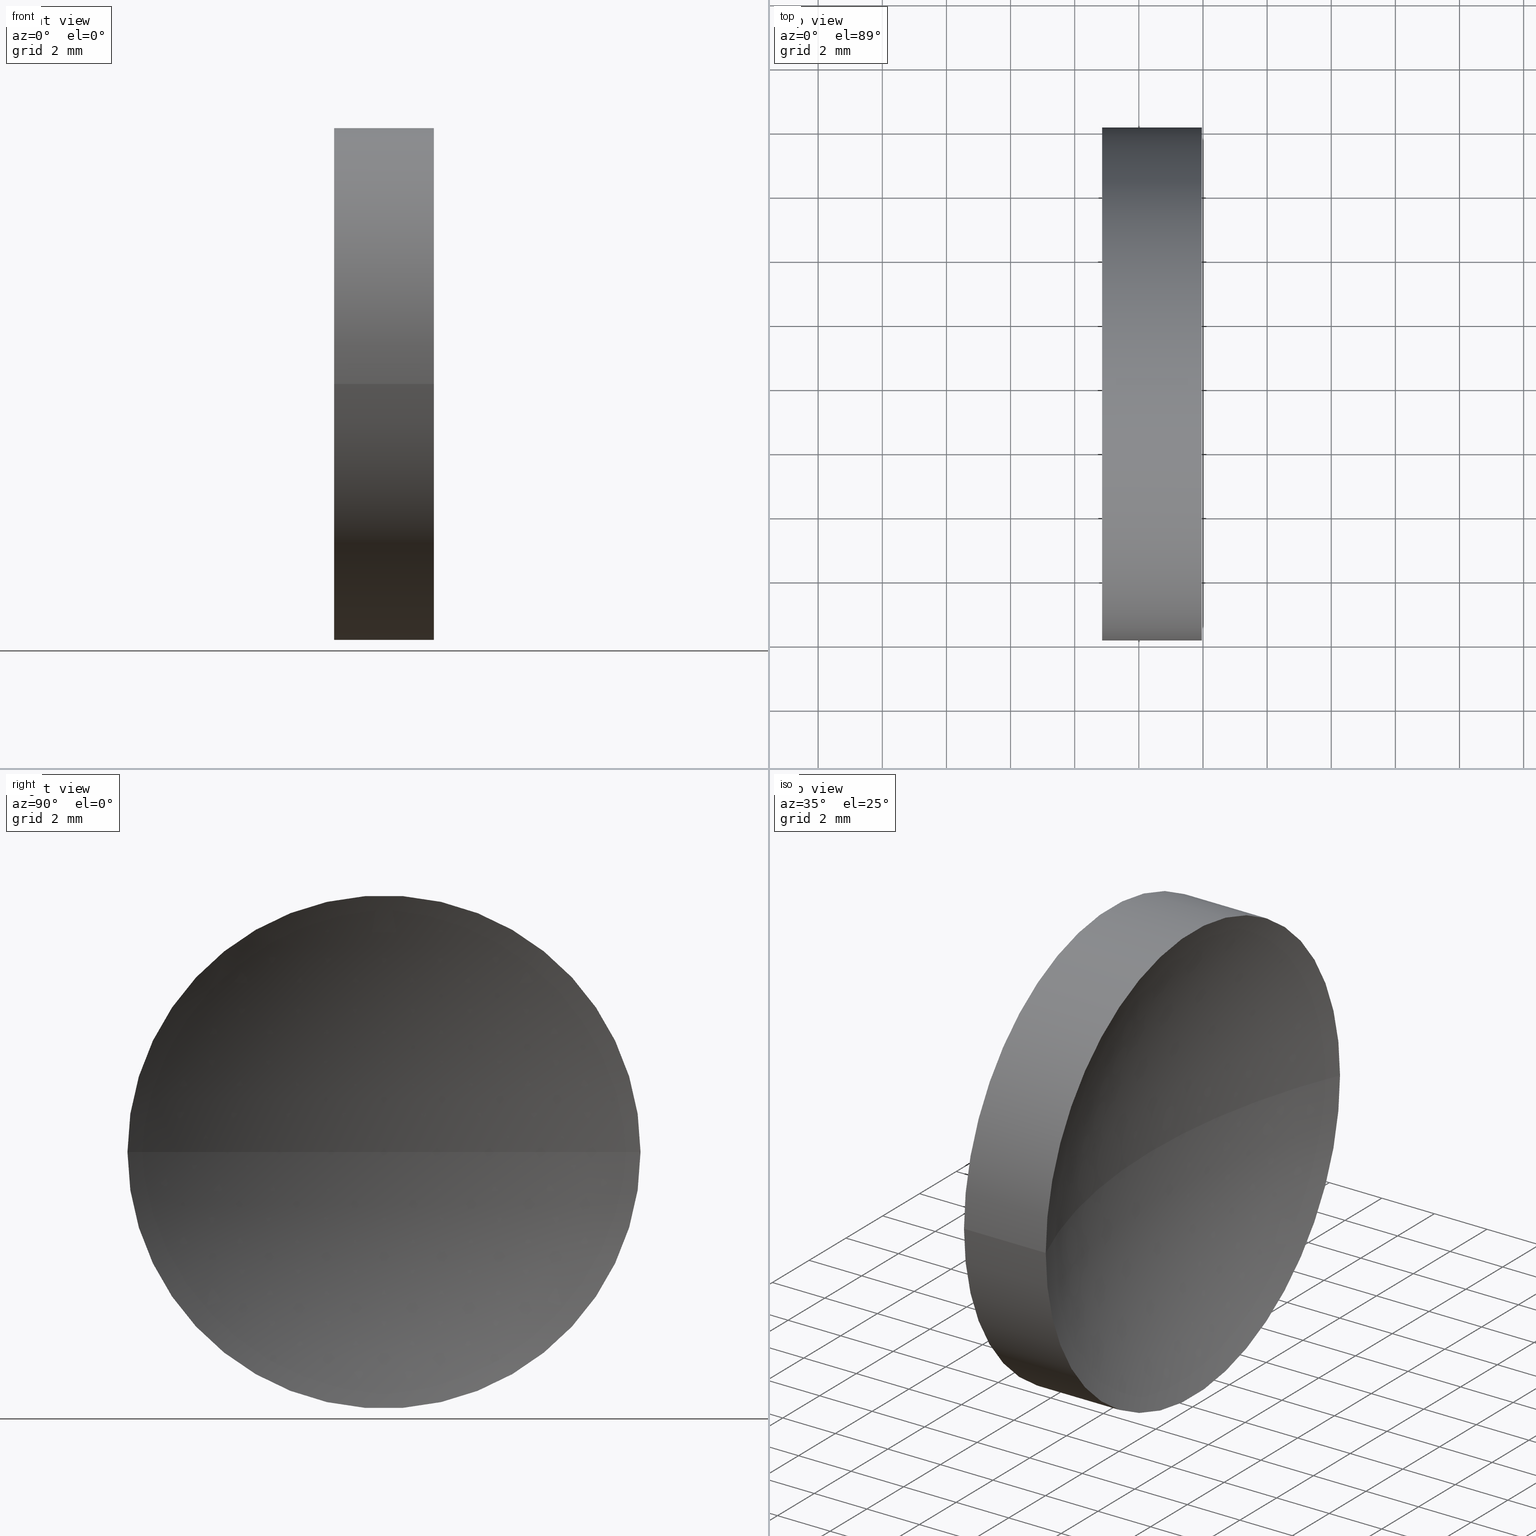
[diagram: canonical four-view strip — front | top / right | iso, engineering-drawing reading convention]
A machine part, canonical four-view strip (front | top / right | iso — engineering-drawing reading convention). The complete STEP part file that produces these views, byte-faithful:
ISO-10303-21;
HEADER;
FILE_DESCRIPTION (( 'STEP AP214' ),
    '1' );
FILE_NAME ('120142.STEP',
    '2019-06-20T01:20:42',
    ( '' ),
    ( '' ),
    'SwSTEP 2.0',
    'SolidWorks 2016',
    '' );
FILE_SCHEMA (( 'AUTOMOTIVE_DESIGN' ));
ENDSEC;

DATA;
#1 = DIRECTION ( 'NONE',  ( -1.000000000000000000, 4.058245434298766700E-016, -0.0000000000000000000 ) ) ;
#2 = CARTESIAN_POINT ( 'NONE',  ( 47.96702522006625500, 26.06225218280608000, 0.0000000000000000000 ) ) ;
#3 = CARTESIAN_POINT ( 'NONE',  ( 43.01195023616492100, 18.06225218280608400, 0.0000000000000000000 ) ) ;
#4 =( GEOMETRIC_REPRESENTATION_CONTEXT ( 3 ) GLOBAL_UNCERTAINTY_ASSIGNED_CONTEXT ( ( #128 ) ) GLOBAL_UNIT_ASSIGNED_CONTEXT ( ( #146, #12, #60 ) ) REPRESENTATION_CONTEXT ( 'NONE', 'WORKASPACE' ) );
#5 = DIRECTION ( 'NONE',  ( 0.0000000000000000000, -1.000000000000000000, 0.0000000000000000000 ) ) ;
#6 = VERTEX_POINT ( 'NONE', #142 ) ;
#7 = DIRECTION ( 'NONE',  ( 4.058245434298766700E-016, 1.000000000000000000, 0.0000000000000000000 ) ) ;
#8 = CARTESIAN_POINT ( 'NONE',  ( 44.85442262622448300, 34.06225218280608400, 9.797174393178827600E-016 ) ) ;
#9 =( LENGTH_UNIT ( ) NAMED_UNIT ( * ) SI_UNIT ( .MILLI., .METRE. ) );
#10 = DIRECTION ( 'NONE',  ( -6.720478357295135600E-016, -1.000000000000000000, 0.0000000000000000000 ) ) ;
#11 = APPLICATION_CONTEXT ( 'automotive_design' ) ;
#12 =( NAMED_UNIT ( * ) PLANE_ANGLE_UNIT ( ) SI_UNIT ( $, .RADIAN. ) );
#13 = EDGE_LOOP ( 'NONE', ( #137, #123, #157 ) ) ;
#14 = AXIS2_PLACEMENT_3D ( 'NONE', #47, #57, #134 ) ;
#15 = CLOSED_SHELL ( 'NONE', ( #147, #26, #145, #71, #124 ) ) ;
#16 = SURFACE_STYLE_FILL_AREA ( #42 ) ;
#17 =( LENGTH_UNIT ( ) NAMED_UNIT ( * ) SI_UNIT ( .MILLI., .METRE. ) );
#18 = EDGE_CURVE ( 'NONE', #20, #6, #110, .T. ) ;
#19 = DIRECTION ( 'NONE',  ( -1.000000000000000000, 4.058245434298766700E-016, -0.0000000000000000000 ) ) ;
#20 = VERTEX_POINT ( 'NONE', #8 ) ;
#21 =( NAMED_UNIT ( * ) SI_UNIT ( $, .STERADIAN. ) SOLID_ANGLE_UNIT ( ) );
#22 = DIRECTION ( 'NONE',  ( 0.0000000000000000000, 0.0000000000000000000, 1.000000000000000000 ) ) ;
#23 = PRODUCT ( '120142', '120142', '', ( #149 ) ) ;
#24 = FACE_OUTER_BOUND ( 'NONE', #38, .T. ) ;
#25 = STYLED_ITEM ( 'NONE', ( #151 ), #113 ) ;
#26 = ADVANCED_FACE ( 'NONE', ( #79 ), #95, .F. ) ;
#27 = ORIENTED_EDGE ( 'NONE', *, *, #18, .F. ) ;
#28 = PRESENTATION_LAYER_ASSIGNMENT (  '', '', ( #25 ) ) ;
#29 = ORIENTED_EDGE ( 'NONE', *, *, #50, .T. ) ;
#30 = CIRCLE ( 'NONE', #108, 20.65000000000000200 ) ;
#31 = CARTESIAN_POINT ( 'NONE',  ( 46.35442262622448300, 26.06225218280608800, 0.0000000000000000000 ) ) ;
#32 = PLANE ( 'NONE',  #75 ) ;
#33 = APPLICATION_PROTOCOL_DEFINITION ( 'draft international standard', 'automotive_design', 1998, #105 ) ;
#34 = ORIENTED_EDGE ( 'NONE', *, *, #121, .T. ) ;
#35 = SURFACE_SIDE_STYLE ('',( #37 ) ) ;
#36 =( GEOMETRIC_REPRESENTATION_CONTEXT ( 3 ) GLOBAL_UNCERTAINTY_ASSIGNED_CONTEXT ( ( #158 ) ) GLOBAL_UNIT_ASSIGNED_CONTEXT ( ( #9, #70, #140 ) ) REPRESENTATION_CONTEXT ( 'NONE', 'WORKASPACE' ) );
#37 = SURFACE_STYLE_FILL_AREA ( #119 ) ;
#38 = EDGE_LOOP ( 'NONE', ( #29, #34, #44, #135 ) ) ;
#39 = ADVANCED_BREP_SHAPE_REPRESENTATION ( '120142', ( #113, #65 ), #159 ) ;
#40 = DIRECTION ( 'NONE',  ( -1.000000000000000000, 0.0000000000000000000, 0.0000000000000000000 ) ) ;
#41 = FILL_AREA_STYLE_COLOUR ( '', #136 ) ;
#42 = FILL_AREA_STYLE ('',( #80 ) ) ;
#43 = LINE ( 'NONE', #143, #150 ) ;
#44 = ORIENTED_EDGE ( 'NONE', *, *, #133, .F. ) ;
#45 = DIRECTION ( 'NONE',  ( 0.0000000000000000000, -1.000000000000000000, 0.0000000000000000000 ) ) ;
#46 = SURFACE_STYLE_USAGE ( .BOTH. , #92 ) ;
#47 = CARTESIAN_POINT ( 'NONE',  ( 47.96702522006625500, 26.06225218280608000, 0.0000000000000000000 ) ) ;
#48 = EDGE_LOOP ( 'NONE', ( #53, #77, #85 ) ) ;
#49 = CIRCLE ( 'NONE', #14, 8.000000000000003600 ) ;
#50 = EDGE_CURVE ( 'NONE', #164, #90, #49, .T. ) ;
#51 = DIRECTION ( 'NONE',  ( -1.000000000000000000, 4.058245434298766700E-016, -0.0000000000000000000 ) ) ;
#52 = DIRECTION ( 'NONE',  ( -6.720478357295135600E-016, -1.000000000000000000, 0.0000000000000000000 ) ) ;
#53 = ORIENTED_EDGE ( 'NONE', *, *, #64, .F. ) ;
#54 = DIRECTION ( 'NONE',  ( -1.000000000000000000, 4.058245434298766700E-016, -0.0000000000000000000 ) ) ;
#55 = CARTESIAN_POINT ( 'NONE',  ( 67.00442262622448200, 26.06225218280608000, 0.0000000000000000000 ) ) ;
#56 = DIRECTION ( 'NONE',  ( 0.0000000000000000000, -1.000000000000000000, 0.0000000000000000000 ) ) ;
#57 = DIRECTION ( 'NONE',  ( -1.000000000000000000, 4.058245434298766700E-016, -0.0000000000000000000 ) ) ;
#58 = ORIENTED_EDGE ( 'NONE', *, *, #121, .F. ) ;
#59 = SURFACE_STYLE_USAGE ( .BOTH. , #35 ) ;
#60 =( NAMED_UNIT ( * ) SI_UNIT ( $, .STERADIAN. ) SOLID_ANGLE_UNIT ( ) );
#61 = PRESENTATION_STYLE_ASSIGNMENT (( #59 ) ) ;
#62 = CIRCLE ( 'NONE', #162, 8.000000000000003600 ) ;
#63 = EDGE_CURVE ( 'NONE', #90, #164, #62, .T. ) ;
#64 = EDGE_CURVE ( 'NONE', #90, #144, #30, .T. ) ;
#65 = AXIS2_PLACEMENT_3D ( 'NONE', #132, #83, #122 ) ;
#66 = CARTESIAN_POINT ( 'NONE',  ( 67.00442262622448200, 26.06225218280608000, 0.0000000000000000000 ) ) ;
#67 = AXIS2_PLACEMENT_3D ( 'NONE', #81, #54, #69 ) ;
#68 = CARTESIAN_POINT ( 'NONE',  ( 47.96702522006625500, 34.06225218280608400, 9.797174393178819700E-016 ) ) ;
#69 = DIRECTION ( 'NONE',  ( 0.0000000000000000000, -1.000000000000000000, 0.0000000000000000000 ) ) ;
#70 =( NAMED_UNIT ( * ) PLANE_ANGLE_UNIT ( ) SI_UNIT ( $, .RADIAN. ) );
#71 = ADVANCED_FACE ( 'NONE', ( #115 ), #100, .T. ) ;
#72 = FACE_OUTER_BOUND ( 'NONE', #48, .T. ) ;
#73 = AXIS2_PLACEMENT_3D ( 'NONE', #156, #97, #5 ) ;
#74 = ORIENTED_EDGE ( 'NONE', *, *, #133, .T. ) ;
#75 = AXIS2_PLACEMENT_3D ( 'NONE', #138, #155, #7 ) ;
#76 = ORIENTED_EDGE ( 'NONE', *, *, #166, .T. ) ;
#77 = ORIENTED_EDGE ( 'NONE', *, *, #50, .F. ) ;
#78 = DIRECTION ( 'NONE',  ( 0.0000000000000000000, 0.0000000000000000000, 1.000000000000000000 ) ) ;
#79 = FACE_OUTER_BOUND ( 'NONE', #13, .T. ) ;
#80 = FILL_AREA_STYLE_COLOUR ( '', #127 ) ;
#81 = CARTESIAN_POINT ( 'NONE',  ( 44.85442262622448300, 26.06225218280608400, 0.0000000000000000000 ) ) ;
#82 = AXIS2_PLACEMENT_3D ( 'NONE', #101, #78, #52 ) ;
#83 = DIRECTION ( 'NONE',  ( 0.0000000000000000000, 0.0000000000000000000, 1.000000000000000000 ) ) ;
#84 = UNCERTAINTY_MEASURE_WITH_UNIT (LENGTH_MEASURE( 1.000000000000000100E-005 ), #17, 'distance_accuracy_value', 'NONE');
#85 = ORIENTED_EDGE ( 'NONE', *, *, #102, .T. ) ;
#86 = PRODUCT_DEFINITION_SHAPE ( 'NONE', 'NONE',  #98 ) ;
#87 = STYLED_ITEM ( 'NONE', ( #61 ), #39 ) ;
#88 = CIRCLE ( 'NONE', #67, 8.000000000000000000 ) ;
#89 = CARTESIAN_POINT ( 'NONE',  ( 43.01195023616492100, 26.06225218280608400, 0.0000000000000000000 ) ) ;
#90 = VERTEX_POINT ( 'NONE', #68 ) ;
#91 = MECHANICAL_DESIGN_GEOMETRIC_PRESENTATION_REPRESENTATION (  '', ( #25 ), #36 ) ;
#92 = SURFACE_SIDE_STYLE ('',( #16 ) ) ;
#93 = DIRECTION ( 'NONE',  ( 0.0000000000000000000, -1.000000000000000000, 0.0000000000000000000 ) ) ;
#94 = CARTESIAN_POINT ( 'NONE',  ( 67.00442262622448200, 26.06225218280608000, 0.0000000000000000000 ) ) ;
#95 = SPHERICAL_SURFACE ( 'NONE', #141, 20.65000000000000200 ) ;
#96 = DIRECTION ( 'NONE',  ( -1.000000000000000000, 4.058245434298766700E-016, -0.0000000000000000000 ) ) ;
#97 = DIRECTION ( 'NONE',  ( -1.000000000000000000, 4.058245434298766700E-016, -0.0000000000000000000 ) ) ;
#98 = PRODUCT_DEFINITION ( 'δ֪', '', #106, #165 ) ;
#99 = SPHERICAL_SURFACE ( 'NONE', #82, 20.65000000000000200 ) ;
#100 = CYLINDRICAL_SURFACE ( 'NONE', #154, 8.000000000000000000 ) ;
#101 = CARTESIAN_POINT ( 'NONE',  ( 67.00442262622448200, 26.06225218280608000, 0.0000000000000000000 ) ) ;
#102 = EDGE_CURVE ( 'NONE', #164, #144, #131, .T. ) ;
#103 = FACE_OUTER_BOUND ( 'NONE', #161, .T. ) ;
#104 = ORIENTED_EDGE ( 'NONE', *, *, #63, .T. ) ;
#105 = APPLICATION_CONTEXT ( 'automotive_design' ) ;
#106 = PRODUCT_DEFINITION_FORMATION_WITH_SPECIFIED_SOURCE ( '�κ�', '', #23, .NOT_KNOWN. ) ;
#107 = EDGE_LOOP ( 'NONE', ( #58, #104, #76, #27 ) ) ;
#108 = AXIS2_PLACEMENT_3D ( 'NONE', #55, #118, #139 ) ;
#109 = VECTOR ( 'NONE', #1, 1000.000000000000000 ) ;
#110 = CIRCLE ( 'NONE', #73, 8.000000000000000000 ) ;
#111 = PRODUCT_RELATED_PRODUCT_CATEGORY ( 'part', '', ( #23 ) ) ;
#112 =( NAMED_UNIT ( * ) PLANE_ANGLE_UNIT ( ) SI_UNIT ( $, .RADIAN. ) );
#113 = MANIFOLD_SOLID_BREP ( '��ת1', #15 ) ;
#114 = CARTESIAN_POINT ( 'NONE',  ( 47.96702522006625500, 18.06225218280608400, 0.0000000000000000000 ) ) ;
#115 = FACE_OUTER_BOUND ( 'NONE', #107, .T. ) ;
#116 = DIRECTION ( 'NONE',  ( 0.0000000000000000000, -0.0000000000000000000, -1.000000000000000000 ) ) ;
#117 = PRESENTATION_LAYER_ASSIGNMENT (  '', '', ( #87 ) ) ;
#118 = DIRECTION ( 'NONE',  ( -4.969917281268344600E-032, -1.224646799147353200E-016, 1.000000000000000000 ) ) ;
#119 = FILL_AREA_STYLE ('',( #41 ) ) ;
#120 = APPLICATION_PROTOCOL_DEFINITION ( 'draft international standard', 'automotive_design', 1998, #11 ) ;
#121 = EDGE_CURVE ( 'NONE', #90, #20, #43, .T. ) ;
#122 = DIRECTION ( 'NONE',  ( 1.000000000000000000, 0.0000000000000000000, 0.0000000000000000000 ) ) ;
#123 = ORIENTED_EDGE ( 'NONE', *, *, #64, .T. ) ;
#124 = ADVANCED_FACE ( 'NONE', ( #103 ), #32, .F. ) ;
#125 = LINE ( 'NONE', #3, #109 ) ;
#126 = AXIS2_PLACEMENT_3D ( 'NONE', #89, #19, #93 ) ;
#127 = COLOUR_RGB ( '',1.000000000000000000, 1.000000000000000000, 1.000000000000000000 ) ;
#128 = UNCERTAINTY_MEASURE_WITH_UNIT (LENGTH_MEASURE( 1.000000000000000100E-005 ), #146, 'distance_accuracy_value', 'NONE');
#129 = CARTESIAN_POINT ( 'NONE',  ( 43.01195023616492100, 26.06225218280608400, 0.0000000000000000000 ) ) ;
#130 = DIRECTION ( 'NONE',  ( -1.000000000000000000, 4.058245434298766700E-016, -0.0000000000000000000 ) ) ;
#131 = CIRCLE ( 'NONE', #148, 20.65000000000000200 ) ;
#132 = CARTESIAN_POINT ( 'NONE',  ( 0.0000000000000000000, 0.0000000000000000000, 0.0000000000000000000 ) ) ;
#133 = EDGE_CURVE ( 'NONE', #6, #20, #88, .T. ) ;
#134 = DIRECTION ( 'NONE',  ( 0.0000000000000000000, -1.000000000000000000, 0.0000000000000000000 ) ) ;
#135 = ORIENTED_EDGE ( 'NONE', *, *, #166, .F. ) ;
#136 = COLOUR_RGB ( '',1.000000000000000000, 1.000000000000000000, 1.000000000000000000 ) ;
#137 = ORIENTED_EDGE ( 'NONE', *, *, #63, .F. ) ;
#138 = CARTESIAN_POINT ( 'NONE',  ( 44.85442262622448300, 26.06225218280608400, 0.0000000000000000000 ) ) ;
#139 = DIRECTION ( 'NONE',  ( 0.0000000000000000000, -1.000000000000000000, -1.224646799147353200E-016 ) ) ;
#140 =( NAMED_UNIT ( * ) SI_UNIT ( $, .STERADIAN. ) SOLID_ANGLE_UNIT ( ) );
#141 = AXIS2_PLACEMENT_3D ( 'NONE', #94, #22, #10 ) ;
#142 = CARTESIAN_POINT ( 'NONE',  ( 44.85442262622448300, 18.06225218280608400, 0.0000000000000000000 ) ) ;
#143 = CARTESIAN_POINT ( 'NONE',  ( 43.01195023616492100, 34.06225218280608400, 9.797174393178827600E-016 ) ) ;
#144 = VERTEX_POINT ( 'NONE', #31 ) ;
#145 = ADVANCED_FACE ( 'NONE', ( #72 ), #99, .F. ) ;
#146 =( LENGTH_UNIT ( ) NAMED_UNIT ( * ) SI_UNIT ( .MILLI., .METRE. ) );
#147 = ADVANCED_FACE ( 'NONE', ( #24 ), #160, .T. ) ;
#148 = AXIS2_PLACEMENT_3D ( 'NONE', #66, #116, #40 ) ;
#149 = PRODUCT_CONTEXT ( 'NONE', #105, 'mechanical' ) ;
#150 = VECTOR ( 'NONE', #51, 1000.000000000000000 ) ;
#151 = PRESENTATION_STYLE_ASSIGNMENT (( #46 ) ) ;
#152 = MECHANICAL_DESIGN_GEOMETRIC_PRESENTATION_REPRESENTATION (  '', ( #87 ), #4 ) ;
#153 = ORIENTED_EDGE ( 'NONE', *, *, #18, .T. ) ;
#154 = AXIS2_PLACEMENT_3D ( 'NONE', #129, #96, #45 ) ;
#155 = DIRECTION ( 'NONE',  ( 1.000000000000000000, -4.058245434298766700E-016, 0.0000000000000000000 ) ) ;
#156 = CARTESIAN_POINT ( 'NONE',  ( 44.85442262622448300, 26.06225218280608400, 0.0000000000000000000 ) ) ;
#157 = ORIENTED_EDGE ( 'NONE', *, *, #102, .F. ) ;
#158 = UNCERTAINTY_MEASURE_WITH_UNIT (LENGTH_MEASURE( 1.000000000000000100E-005 ), #9, 'distance_accuracy_value', 'NONE');
#159 =( GEOMETRIC_REPRESENTATION_CONTEXT ( 3 ) GLOBAL_UNCERTAINTY_ASSIGNED_CONTEXT ( ( #84 ) ) GLOBAL_UNIT_ASSIGNED_CONTEXT ( ( #17, #112, #21 ) ) REPRESENTATION_CONTEXT ( 'NONE', 'WORKASPACE' ) );
#160 = CYLINDRICAL_SURFACE ( 'NONE', #126, 8.000000000000000000 ) ;
#161 = EDGE_LOOP ( 'NONE', ( #74, #153 ) ) ;
#162 = AXIS2_PLACEMENT_3D ( 'NONE', #2, #130, #56 ) ;
#163 = SHAPE_DEFINITION_REPRESENTATION ( #86, #39 ) ;
#164 = VERTEX_POINT ( 'NONE', #114 ) ;
#165 = PRODUCT_DEFINITION_CONTEXT ( 'detailed design', #11, 'design' ) ;
#166 = EDGE_CURVE ( 'NONE', #164, #6, #125, .T. ) ;
ENDSEC;
END-ISO-10303-21;
